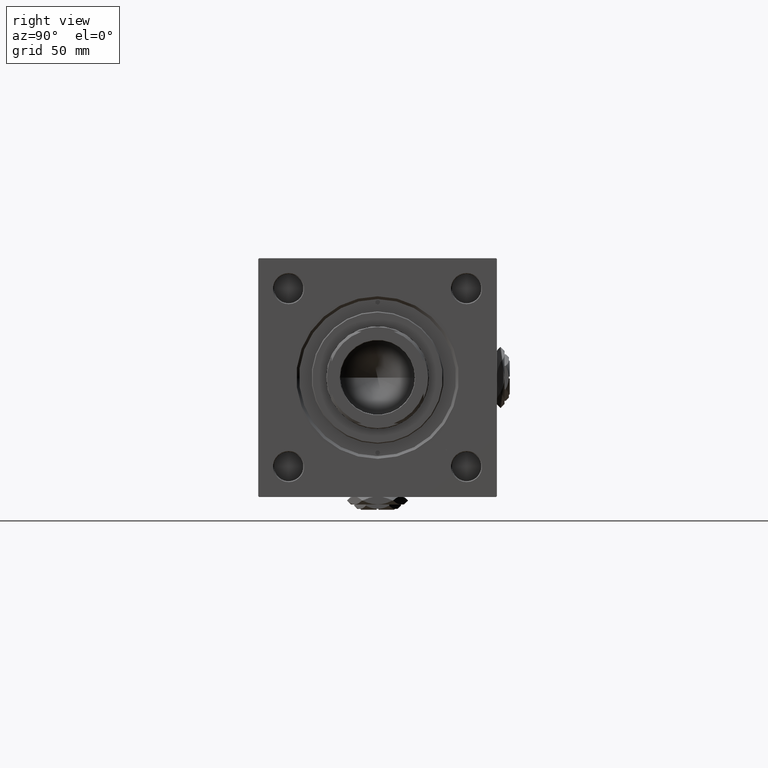
[diagram: clean part render]
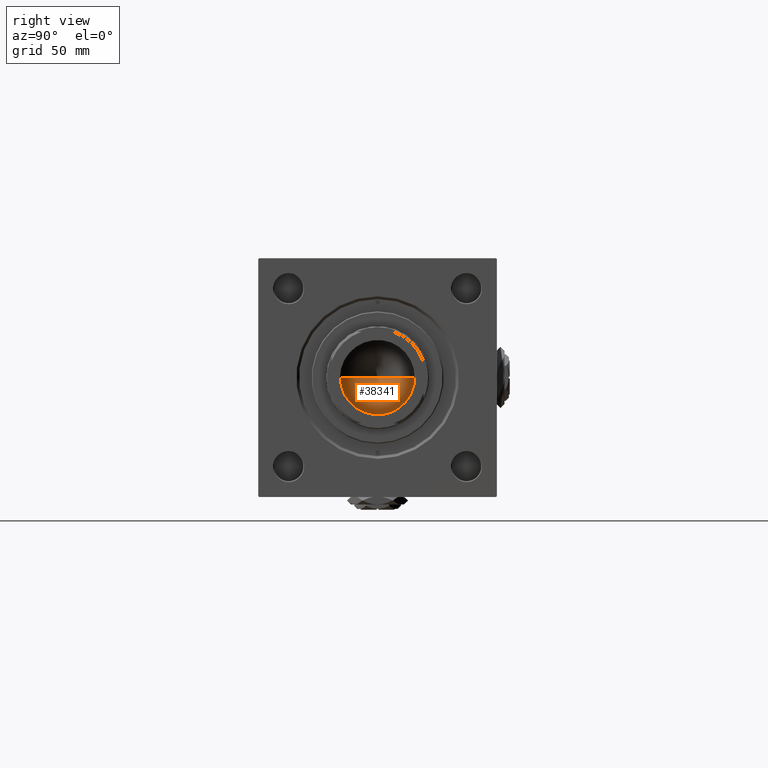
[diagram: same view with one face highlighted and labeled with its STEP entity id]
A machine part, right view. The second image highlights one B-rep face of the part: STEP entity #38341.
In plain terms, the highlighted conical surface has half-angle 59 deg.
Its self-contained STEP definition (entity closure, byte-faithful):
#3060 = AXIS2_PLACEMENT_3D ( 'NONE', #28356, #16277, #36662 ) ;
#4576 = CARTESIAN_POINT ( 'NONE',  ( 0.000000000000000000, 0.000000000000000000, 222.0000000000000284 ) ) ;
#5351 = DIRECTION ( 'NONE',  ( -0.000000000000000000, -0.000000000000000000, 1.000000000000000000 ) ) ;
#9282 = EDGE_CURVE ( 'NONE', #12004, #30069, #11394, .T. ) ;
#11394 = LINE ( 'NONE', #28508, #14697 ) ;
#11981 = CONICAL_SURFACE ( 'NONE', #32520, 20.24999999999998934, 1.029744258676652313 ) ;
#12004 = VERTEX_POINT ( 'NONE', #22186 ) ;
#14327 = DIRECTION ( 'NONE',  ( 0.8571673007021112234, 0.000000000000000000, 0.5150380749100560429 ) ) ;
#14697 = VECTOR ( 'NONE', #44834, 1000.000000000000000 ) ;
#16277 = DIRECTION ( 'NONE',  ( -0.000000000000000000, -0.000000000000000000, 1.000000000000000000 ) ) ;
#17499 = VECTOR ( 'NONE', #14327, 1000.000000000000000 ) ;
#20800 = EDGE_CURVE ( 'NONE', #44350, #30069, #23564, .T. ) ;
#22186 = CARTESIAN_POINT ( 'NONE',  ( -1.584115414415908206E-14, 0.000000000000000000, 209.8325724646918786 ) ) ;
#22547 = CARTESIAN_POINT ( 'NONE',  ( 20.24999999999998934, 0.000000000000000000, 222.0000000000000284 ) ) ;
#23367 = ORIENTED_EDGE ( 'NONE', *, *, #52705, .T. ) ;
#23564 = CIRCLE ( 'NONE', #3060, 20.24999999999998934 ) ;
#25259 = ORIENTED_EDGE ( 'NONE', *, *, #20800, .T. ) ;
#25424 = DIRECTION ( 'NONE',  ( 1.000000000000000000, 0.000000000000000000, 0.000000000000000000 ) ) ;
#25845 = LINE ( 'NONE', #38985, #17499 ) ;
#28356 = CARTESIAN_POINT ( 'NONE',  ( 0.000000000000000000, 0.000000000000000000, 222.0000000000000284 ) ) ;
#28508 = CARTESIAN_POINT ( 'NONE',  ( -20.24999999999998934, 2.479909768273389117E-15, 222.0000000000000284 ) ) ;
#30069 = VERTEX_POINT ( 'NONE', #42875 ) ;
#32520 = AXIS2_PLACEMENT_3D ( 'NONE', #4576, #5351, #25424 ) ;
#34435 = ORIENTED_EDGE ( 'NONE', *, *, #9282, .F. ) ;
#36258 = EDGE_LOOP ( 'NONE', ( #34435, #23367, #25259 ) ) ;
#36662 = DIRECTION ( 'NONE',  ( 1.000000000000000000, 0.000000000000000000, 0.000000000000000000 ) ) ;
#38341 = ADVANCED_FACE ( 'NONE', ( #50330 ), #11981, .F. ) ;
#38985 = CARTESIAN_POINT ( 'NONE',  ( 20.24999999999998934, 0.000000000000000000, 222.0000000000000284 ) ) ;
#42875 = CARTESIAN_POINT ( 'NONE',  ( -20.24999999999998934, 2.479909768273389117E-15, 222.0000000000000284 ) ) ;
#44350 = VERTEX_POINT ( 'NONE', #22547 ) ;
#44834 = DIRECTION ( 'NONE',  ( -0.8571673007021112234, 1.049727191138617340E-16, 0.5150380749100560429 ) ) ;
#50330 = FACE_OUTER_BOUND ( 'NONE', #36258, .T. ) ;
#52705 = EDGE_CURVE ( 'NONE', #12004, #44350, #25845, .T. ) ;